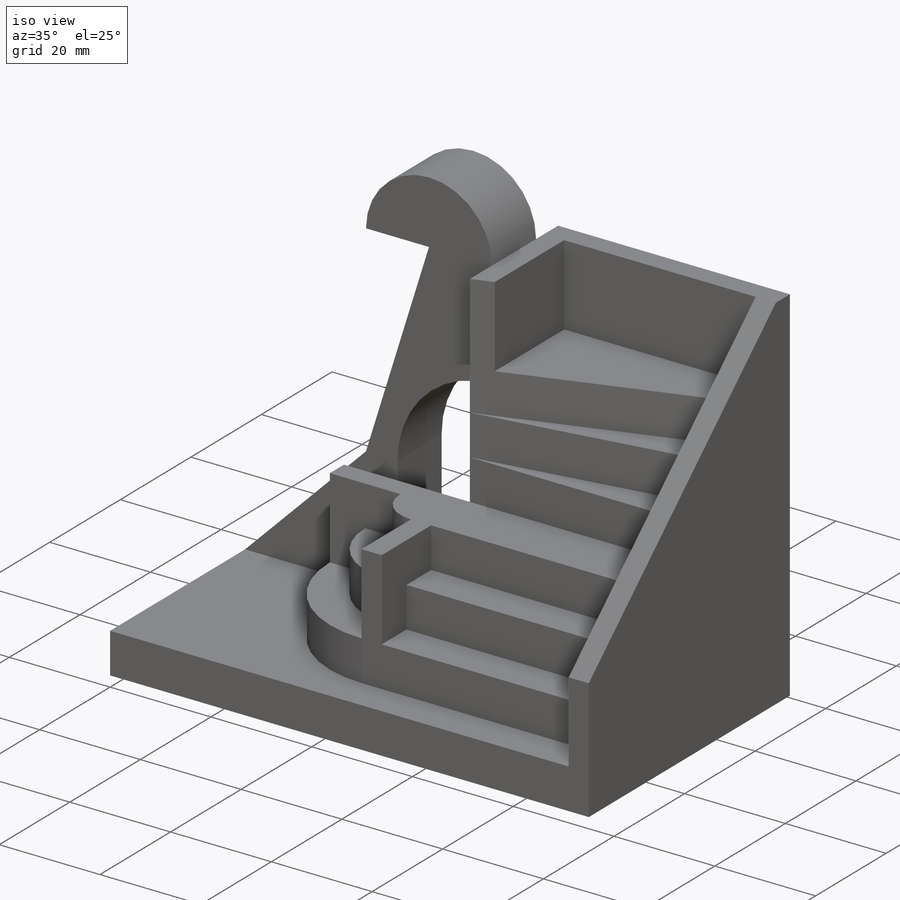
[diagram: iso view]
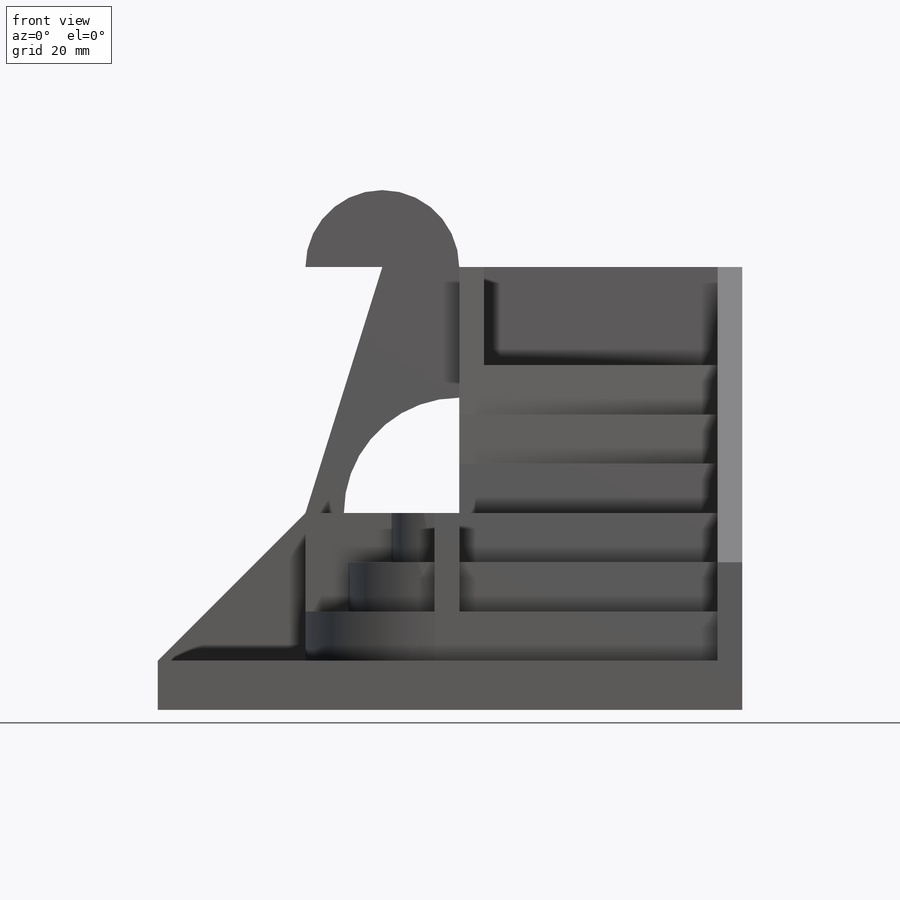
[diagram: front view]
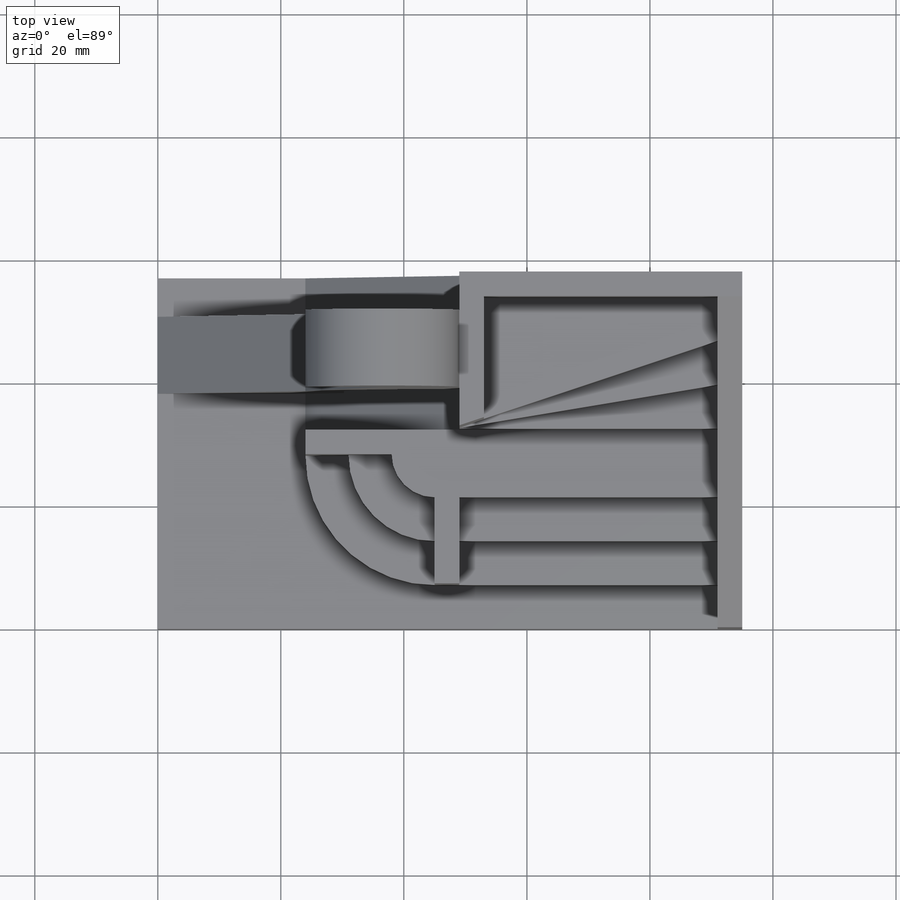
[diagram: top view]
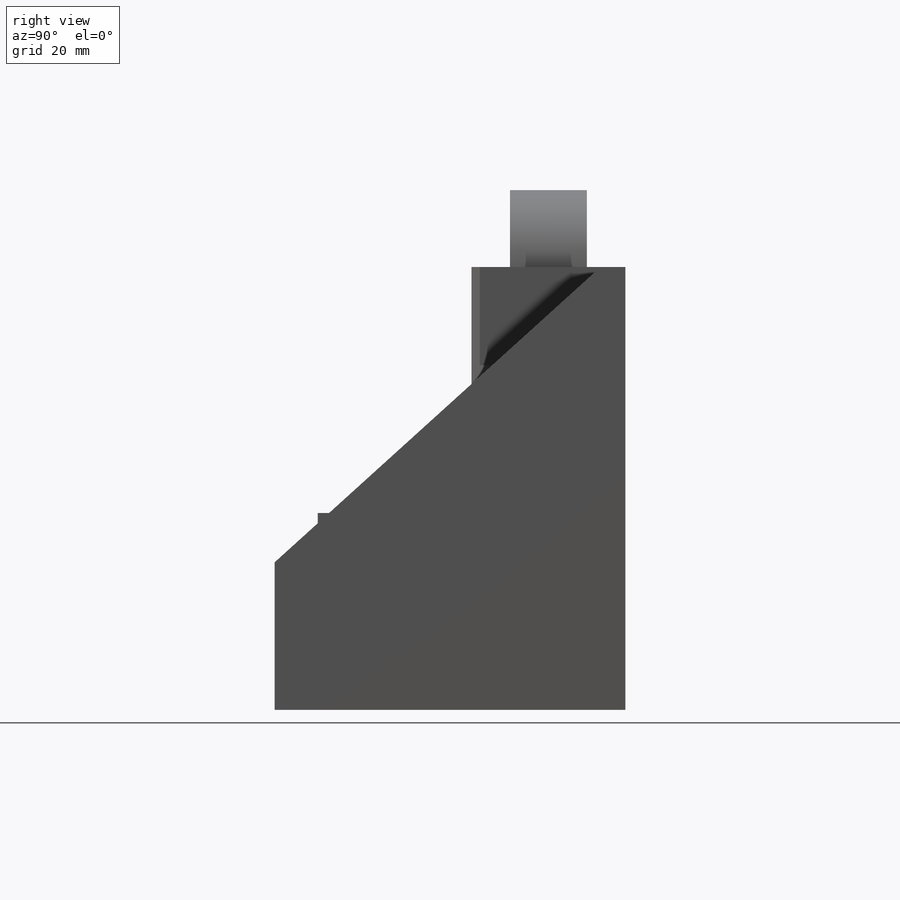
[diagram: right view]
SOLIDWORKS PART (.sldprt)
format: sldprt  version: not decoded by parser v0  size: 434,688 bytes
history: native  units: mm
features: sketch x14, extrude x9, cut_extrude x5, plane x3, material x1 (+8 scaffold rows collapsed)
feature tree (40):
  scaffold x8  (default folders/planes/origin — collapsed)
  material  "Concreto"
  plane  "Alzado"
  plane  "Planta"
  plane  "Vista lateral"
  sketch  "Croquis1"  dims[D1=57.0mm D2=95.0mm]
  extrude  "Saliente-Extruir1"  Depth=8mm
  sketch  "Croquis2"  dims[c1.D1=7.0mm c1.D2=46.0mm c1.D3=25.0mm c1.D4=4.0mm c1.D5=4.0mm c2.D4=4.0mm c2.D6=4.0mm]
  extrude  "Saliente-Extruir2"  Depth=64mm
  sketch  "Croquis3"  dims[c1.D1=25.0mm c1.D2=4.0mm c1.D3=25.0mm c1.D4=25.0mm c2.D2=4.0mm c2.D3=21.0mm c2.D4=21.0mm]
  extrude  "Saliente-Extruir3"  Depth=24mm
  sketch  "Croquis4"  dims[D1=7.0mm]
  cut_extrude  "Cortar-Extruir1"  Depth=8mm
  sketch  "Croquis5"  dims[D1=14.0mm]
  cut_extrude  "Cortar-Extruir2"  Depth=16mm
  sketch  "Croquis6"  dims[D1=24.0mm D2=4.0mm]
  cut_extrude  "Cortar-Extruir3"  Depth=16mm
  sketch  "Croquis7"  dims[D1=7.0mm]
  extrude  "Saliente-Extruir6"  Depth=8mm
  sketch  "Croquis9"  dims[D1=7.0mm]
  extrude  "Saliente-Extruir8"  Depth=16mm
  sketch  "Croquis10"
  extrude  "Saliente-Extruir9"  Depth=40mm
  sketch  "Croquis11"
  extrude  "Saliente-Extruir10"  Depth=24mm
  sketch  "Croquis12"
  extrude  "Saliente-Extruir12"  Depth=25mm
  sketch  "Croquis13"  dims[D1=12.5mm D2=25.0mm]
  extrude  "Saliente-Extruir13"  Depth=77.5mm
  sketch  "Croquis14"
  cut_extrude  "Cortar-Extruir4"  [1 undecoded]
  sketch  "Croquis15"
  cut_extrude  "Cortar-Extruir5"  [1 undecoded]
decode coverage: 21 of 28 modeling features carry decoded parameters
note: 2 parameter values undecoded
note: suppression state not decoded; provenance and decode notes live in map.json
